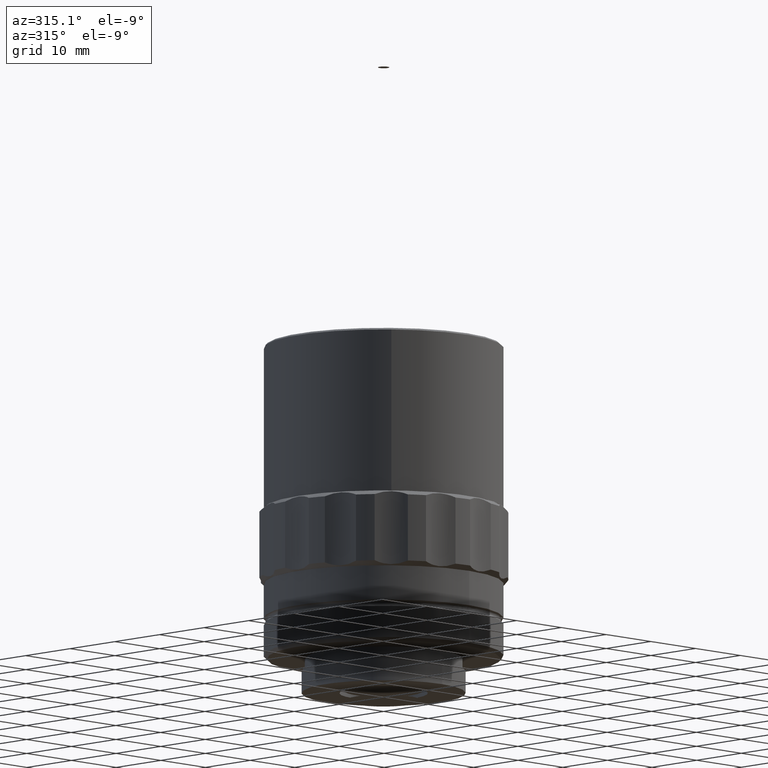
[diagram: clean part render]
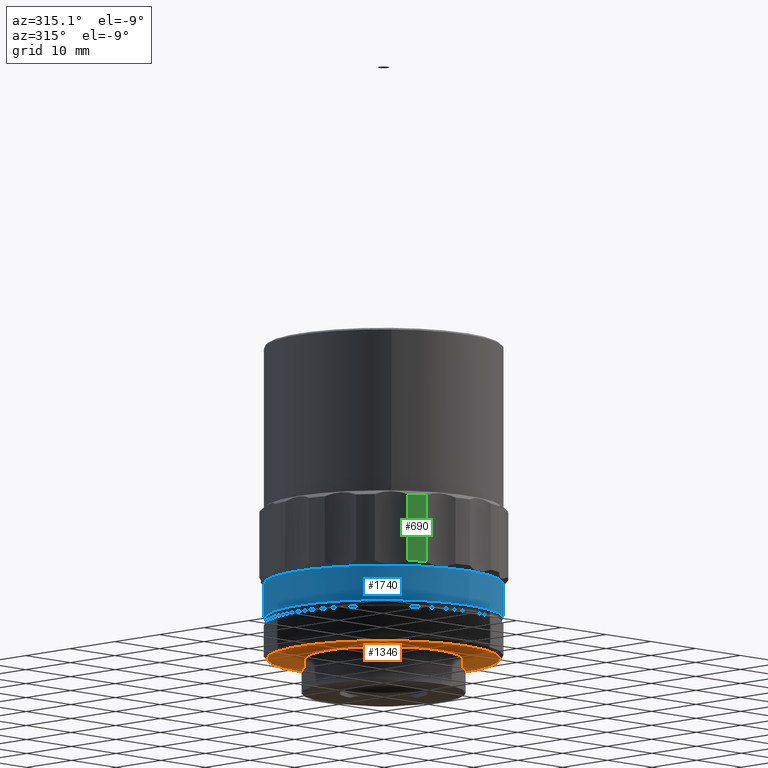
[diagram: same view with three faces highlighted in distinct colors, each labeled with its STEP entity id]
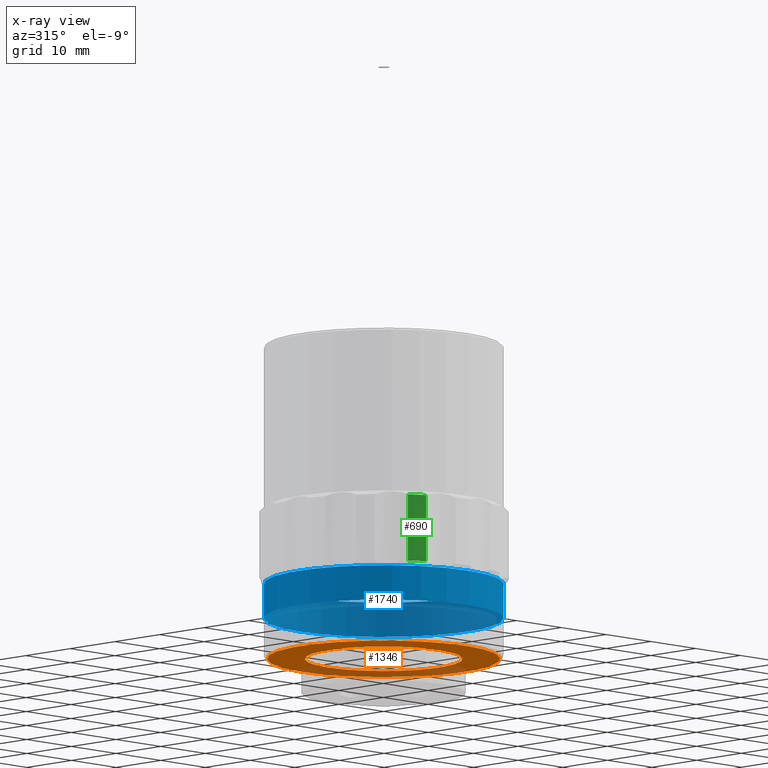
[diagram: x-ray of the same camera — body ghosted, the three highlighted faces saturated]
A machine part, auxiliary view with three faces highlighted in distinct colors.
The next image is the same camera in x-ray (body ghosted, the three faces saturated) — at least one of them is partly hidden behind the body in this view.
Their STEP definitions:

[orange] entity #1346 — the highlighted planar face has unit normal (0, 0, 1).
#104 = CARTESIAN_POINT ( 'NONE',  ( 1.019079640959051015E-16, -1.754371055471545901E-15, 4.689999999999999503 ) ) ;
#199 = DIRECTION ( 'NONE',  ( 0.01109414005692110905, -0.9999384581344981093, 0.000000000000000000 ) ) ;
#293 = FACE_OUTER_BOUND ( 'NONE', #2339, .T. ) ;
#369 = EDGE_CURVE ( 'NONE', #479, #479, #2917, .T. ) ;
#479 = VERTEX_POINT ( 'NONE', #3135 ) ;
#632 = PLANE ( 'NONE',  #2812 ) ;
#1248 = VERTEX_POINT ( 'NONE', #4272 ) ;
#1280 = DIRECTION ( 'NONE',  ( 1.734723475976809020E-18, 1.474514954580309450E-17, 1.000000000000000000 ) ) ;
#1345 = AXIS2_PLACEMENT_3D ( 'NONE', #4213, #1280, #2255 ) ;
#1346 = ADVANCED_FACE ( 'NONE', ( #4007, #293 ), #632, .F. ) ;
#2034 = DIRECTION ( 'NONE',  ( 1.734723475976809020E-18, 1.474514954580309450E-17, 1.000000000000000000 ) ) ;
#2083 = EDGE_CURVE ( 'NONE', #1248, #1248, #4234, .T. ) ;
#2255 = DIRECTION ( 'NONE',  ( -0.01109414005692111078, 0.9999384581344981093, 0.000000000000000000 ) ) ;
#2339 = EDGE_LOOP ( 'NONE', ( #2481 ) ) ;
#2481 = ORIENTED_EDGE ( 'NONE', *, *, #2083, .F. ) ;
#2812 = AXIS2_PLACEMENT_3D ( 'NONE', #4343, #2034, #3297 ) ;
#2816 = DIRECTION ( 'NONE',  ( -1.734723475976809020E-18, -1.474514954580309450E-17, -1.000000000000000000 ) ) ;
#2917 = CIRCLE ( 'NONE', #4169, 12.50000000000001599 ) ;
#3135 = CARTESIAN_POINT ( 'NONE',  ( 0.1386767507115141407, -12.49923072668124391, 4.689999999999999503 ) ) ;
#3297 = DIRECTION ( 'NONE',  ( -0.01109414005692111078, 0.9999384581344981093, -1.472499683659042610E-17 ) ) ;
#3630 = ORIENTED_EDGE ( 'NONE', *, *, #369, .F. ) ;
#3913 = EDGE_LOOP ( 'NONE', ( #3630 ) ) ;
#4007 = FACE_BOUND ( 'NONE', #3913, .T. ) ;
#4169 = AXIS2_PLACEMENT_3D ( 'NONE', #104, #2816, #199 ) ;
#4213 = CARTESIAN_POINT ( 'NONE',  ( 1.019079640959051138E-16, -1.754371055471545901E-15, 4.690000000000003055 ) ) ;
#4234 = CIRCLE ( 'NONE', #1345, 18.50000000000002132 ) ;
#4272 = CARTESIAN_POINT ( 'NONE',  ( -0.2052415910530406840, 18.49886147548823345, 4.690000000000003055 ) ) ;
#4343 = CARTESIAN_POINT ( 'NONE',  ( -12.49923072668124391, -0.1386767507115158893, 4.689999999999999503 ) ) ;

[blue] entity #1740 — the highlighted cylindrical surface (bore or boss wall) has radius 19 mm, axis along (-0, -0, -1).
#96 = CARTESIAN_POINT ( 'NONE',  ( 1.227246458076267990E-16, -1.577429260921908619E-15, 16.68999999999999773 ) ) ;
#108 = FACE_OUTER_BOUND ( 'NONE', #2980, .T. ) ;
#112 = EDGE_LOOP ( 'NONE', ( #1739 ) ) ;
#185 = ORIENTED_EDGE ( 'NONE', *, *, #1473, .T. ) ;
#629 = CIRCLE ( 'NONE', #3654, 19.00000000000002842 ) ;
#810 = CARTESIAN_POINT ( 'NONE',  ( 8.354839166315488270E-17, -1.910427421149925140E-15, -5.893572936552369690 ) ) ;
#816 = CARTESIAN_POINT ( 'NONE',  ( 0.2107886610815014883, -18.99883070455549117, 11.18999999999999773 ) ) ;
#903 = DIRECTION ( 'NONE',  ( 1.734723475976809020E-18, 1.474514954580309450E-17, 1.000000000000000000 ) ) ;
#1072 = DIRECTION ( 'NONE',  ( -1.734723475976809020E-18, -1.474514954580309450E-17, -1.000000000000000000 ) ) ;
#1125 = DIRECTION ( 'NONE',  ( 0.01109414005692111078, -0.9999384581344979983, 0.000000000000000000 ) ) ;
#1150 = DIRECTION ( 'NONE',  ( -1.734723475976809020E-18, -1.474514954580309450E-17, -1.000000000000000000 ) ) ;
#1254 = EDGE_CURVE ( 'NONE', #2428, #2428, #2605, .T. ) ;
#1473 = EDGE_CURVE ( 'NONE', #4130, #4130, #629, .T. ) ;
#1493 = AXIS2_PLACEMENT_3D ( 'NONE', #810, #1072, #4133 ) ;
#1577 = CARTESIAN_POINT ( 'NONE',  ( 1.131836666897543353E-16, -1.658527583423825928E-15, 11.18999999999999773 ) ) ;
#1739 = ORIENTED_EDGE ( 'NONE', *, *, #1254, .T. ) ;
#1740 = ADVANCED_FACE ( 'NONE', ( #1799, #108 ), #2491, .T. ) ;
#1799 = FACE_OUTER_BOUND ( 'NONE', #112, .T. ) ;
#2257 = AXIS2_PLACEMENT_3D ( 'NONE', #1577, #903, #3588 ) ;
#2428 = VERTEX_POINT ( 'NONE', #816 ) ;
#2491 = CYLINDRICAL_SURFACE ( 'NONE', #1493, 19.00000000000002842 ) ;
#2605 = CIRCLE ( 'NONE', #2257, 19.00000000000002842 ) ;
#2980 = EDGE_LOOP ( 'NONE', ( #185 ) ) ;
#3588 = DIRECTION ( 'NONE',  ( 0.01109414005692111078, -0.9999384581344979983, 0.000000000000000000 ) ) ;
#3654 = AXIS2_PLACEMENT_3D ( 'NONE', #96, #1150, #1125 ) ;
#3800 = CARTESIAN_POINT ( 'NONE',  ( 0.2107886610815015160, -18.99883070455549117, 16.68999999999999773 ) ) ;
#4130 = VERTEX_POINT ( 'NONE', #3800 ) ;
#4133 = DIRECTION ( 'NONE',  ( 0.01109414005692111078, -0.9999384581344979983, 0.000000000000000000 ) ) ;

[green] entity #690 — the highlighted cylindrical surface (partial cylindrical patch) has radius 19.75 mm, axis along (-0, -0, -1).
#303 = DIRECTION ( 'NONE',  ( 1.734723475976809020E-18, 1.474514954580309450E-17, 1.000000000000000000 ) ) ;
#424 = CARTESIAN_POINT ( 'NONE',  ( -10.95601315257743380, -16.43253710784037480, 17.39000000000000412 ) ) ;
#455 = DIRECTION ( 'NONE',  ( 0.01109414005692111078, -0.9999384581344981093, 0.000000000000000000 ) ) ;
#690 = ADVANCED_FACE ( 'NONE', ( #3035 ), #1424, .T. ) ;
#831 = EDGE_CURVE ( 'NONE', #3598, #3325, #3535, .T. ) ;
#867 = ORIENTED_EDGE ( 'NONE', *, *, #4334, .F. ) ;
#947 = AXIS2_PLACEMENT_3D ( 'NONE', #3761, #1115, #455 ) ;
#1014 = VERTEX_POINT ( 'NONE', #2363 ) ;
#1041 = CARTESIAN_POINT ( 'NONE',  ( 8.354839166315488270E-17, -1.910427421149925140E-15, -5.893572936552369690 ) ) ;
#1108 = DIRECTION ( 'NONE',  ( 1.734723475976809020E-18, 1.474514954580309450E-17, 1.000000000000000000 ) ) ;
#1115 = DIRECTION ( 'NONE',  ( 1.734723475976809020E-18, 1.474514954580309450E-17, 1.000000000000000000 ) ) ;
#1130 = CARTESIAN_POINT ( 'NONE',  ( -10.95601315257742847, -16.43253710784038901, -5.893572936552369690 ) ) ;
#1286 = VECTOR ( 'NONE', #1108, 1000.000000000000000 ) ;
#1424 = CYLINDRICAL_SURFACE ( 'NONE', #1773, 19.75000000000002842 ) ;
#1773 = AXIS2_PLACEMENT_3D ( 'NONE', #1041, #2701, #3122 ) ;
#1794 = LINE ( 'NONE', #2078, #1286 ) ;
#1942 = AXIS2_PLACEMENT_3D ( 'NONE', #3681, #303, #1988 ) ;
#1963 = EDGE_LOOP ( 'NONE', ( #2570, #3804, #867, #3953 ) ) ;
#1988 = DIRECTION ( 'NONE',  ( 0.01109414005692999430, -0.9999384581344981093, 0.000000000000000000 ) ) ;
#2078 = CARTESIAN_POINT ( 'NONE',  ( -8.358026158200742017, -17.89429793925520684, 34.68999999999999773 ) ) ;
#2363 = CARTESIAN_POINT ( 'NONE',  ( -8.358026158200749123, -17.89429793925519974, 27.98999999999999488 ) ) ;
#2551 = VERTEX_POINT ( 'NONE', #4001 ) ;
#2552 = DIRECTION ( 'NONE',  ( -1.734723475976809020E-18, -1.474514954580309450E-17, -1.000000000000000000 ) ) ;
#2570 = ORIENTED_EDGE ( 'NONE', *, *, #3596, .T. ) ;
#2678 = CARTESIAN_POINT ( 'NONE',  ( -10.95601315257743202, -16.43253710784038546, 27.98999999999998778 ) ) ;
#2701 = DIRECTION ( 'NONE',  ( -1.734723475976809020E-18, -1.474514954580309450E-17, -1.000000000000000000 ) ) ;
#2784 = CIRCLE ( 'NONE', #947, 19.75000000000002842 ) ;
#3035 = FACE_OUTER_BOUND ( 'NONE', #1963, .T. ) ;
#3122 = DIRECTION ( 'NONE',  ( 0.01109414005692111078, -0.9999384581344981093, 0.000000000000000000 ) ) ;
#3303 = VECTOR ( 'NONE', #2552, 1000.000000000000000 ) ;
#3325 = VERTEX_POINT ( 'NONE', #424 ) ;
#3328 = EDGE_CURVE ( 'NONE', #2551, #1014, #1794, .T. ) ;
#3535 = LINE ( 'NONE', #1130, #3303 ) ;
#3596 = EDGE_CURVE ( 'NONE', #3325, #2551, #3816, .T. ) ;
#3598 = VERTEX_POINT ( 'NONE', #2678 ) ;
#3681 = CARTESIAN_POINT ( 'NONE',  ( 1.239389522408105689E-16, -1.567107656239846735E-15, 17.39000000000000057 ) ) ;
#3761 = CARTESIAN_POINT ( 'NONE',  ( 1.423270210861647389E-16, -1.410809071054334601E-15, 27.98999999999999133 ) ) ;
#3804 = ORIENTED_EDGE ( 'NONE', *, *, #3328, .T. ) ;
#3816 = CIRCLE ( 'NONE', #1942, 19.75000000000002487 ) ;
#3953 = ORIENTED_EDGE ( 'NONE', *, *, #831, .T. ) ;
#4001 = CARTESIAN_POINT ( 'NONE',  ( -8.358026158200745570, -17.89429793925520684, 17.39000000000000412 ) ) ;
#4334 = EDGE_CURVE ( 'NONE', #3598, #1014, #2784, .T. ) ;